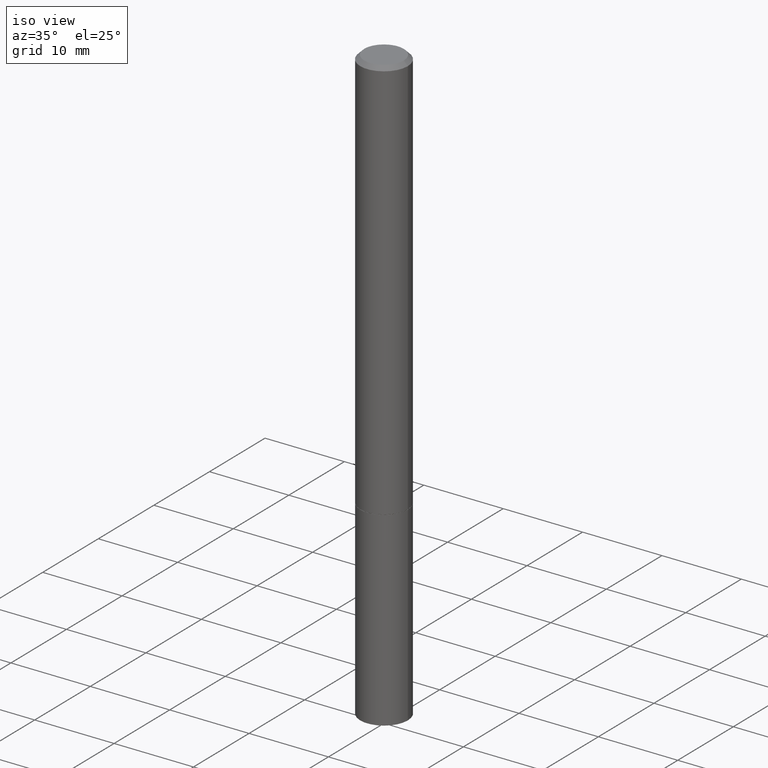
[diagram: clean part render]
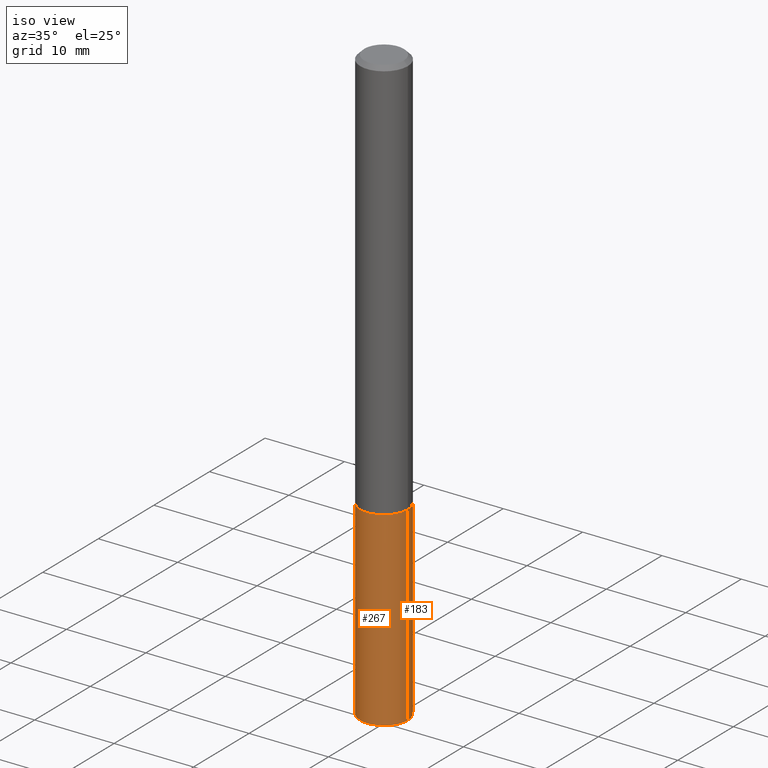
[diagram: same view with one multi-face feature highlighted, each face labeled with its STEP entity id]
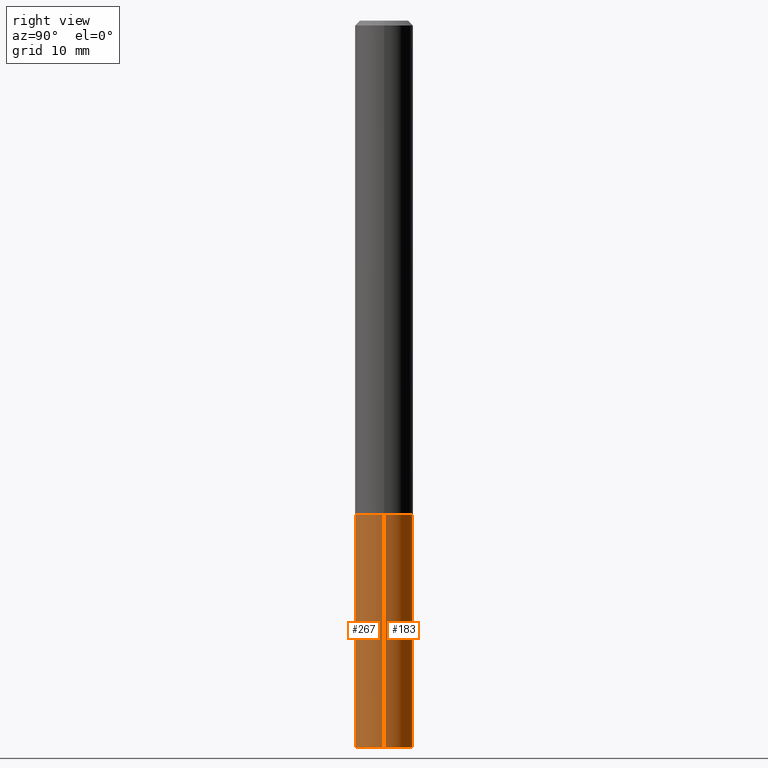
[diagram: same view with one multi-face feature highlighted, each face labeled with its STEP entity id]
A machine part, iso view. The highlighted faces form ONE feature: a constant-radius fillet chain: 2 tangent blend faces with common blend radius 2.9997 mm. The faces share edges in the B-rep.
A second angle (right view) of the same feature is appended — it is thin or edge-on in the first view.
Their STEP definitions:
[1] entity #183 (Cylinder):
#6 = CIRCLE ( 'NONE', #207, 0.1180999999999999966 ) ;
#8 = DIRECTION ( 'NONE',  ( -2.445468806185136597E-29, 3.491481338843145583E-15, 1.000000000000000000 ) ) ;
#9 = DIRECTION ( 'NONE',  ( 1.000000000000000000, -6.982962677686266711E-15, 4.876176775795936353E-29 ) ) ;
#34 = LINE ( 'NONE', #147, #113 ) ;
#44 = CARTESIAN_POINT ( 'NONE',  ( -0.1180999999999999966, 8.391509709326782957E-16, -5.809262341591043784E-30 ) ) ;
#50 = EDGE_LOOP ( 'NONE', ( #60, #89, #344, #168 ) ) ;
#53 = AXIS2_PLACEMENT_3D ( 'NONE', #352, #103, #9 ) ;
#60 = ORIENTED_EDGE ( 'NONE', *, *, #86, .T. ) ;
#62 = EDGE_CURVE ( 'NONE', #345, #90, #34, .T. ) ;
#65 = CARTESIAN_POINT ( 'NONE',  ( -0.1180999999999999966, -7.820944767866917317E-15, -2.952799999999999869 ) ) ;
#71 = CARTESIAN_POINT ( 'NONE',  ( 0.1180999999999999966, -1.113433398957078679E-14, -2.952799999999999869 ) ) ;
#79 = FACE_OUTER_BOUND ( 'NONE', #50, .T. ) ;
#86 = EDGE_CURVE ( 'NONE', #345, #112, #317, .T. ) ;
#88 = EDGE_CURVE ( 'NONE', #90, #176, #6, .T. ) ;
#89 = ORIENTED_EDGE ( 'NONE', *, *, #221, .T. ) ;
#90 = VERTEX_POINT ( 'NONE', #251 ) ;
#103 = DIRECTION ( 'NONE',  ( -2.445468806185136597E-29, 3.491481338843145583E-15, 1.000000000000000000 ) ) ;
#112 = VERTEX_POINT ( 'NONE', #65 ) ;
#113 = VECTOR ( 'NONE', #291, 39.37007874015748143 ) ;
#120 = DIRECTION ( 'NONE',  ( 1.000000000000000000, -6.982962677686273021E-15, 0.000000000000000000 ) ) ;
#141 = DIRECTION ( 'NONE',  ( 1.000000000000000000, -6.982962677686265133E-15, 0.000000000000000000 ) ) ;
#147 = CARTESIAN_POINT ( 'NONE',  ( 0.1180999999999999966, -8.246878922347480654E-16, 5.758764772215000440E-30 ) ) ;
#158 = DIRECTION ( 'NONE',  ( -2.445468806185136877E-29, 3.491481338843145188E-15, 1.000000000000000000 ) ) ;
#168 = ORIENTED_EDGE ( 'NONE', *, *, #62, .F. ) ;
#176 = VERTEX_POINT ( 'NONE', #266 ) ;
#183 = ADVANCED_FACE ( 'NONE', ( #79 ), #303, .T. ) ;
#207 = AXIS2_PLACEMENT_3D ( 'NONE', #337, #321, #141 ) ;
#221 = EDGE_CURVE ( 'NONE', #112, #176, #298, .T. ) ;
#247 = VECTOR ( 'NONE', #158, 39.37007874015748143 ) ;
#251 = CARTESIAN_POINT ( 'NONE',  ( 0.1180999999999999966, -7.835233272497899184E-15, -2.007899999999999796 ) ) ;
#260 = CARTESIAN_POINT ( 'NONE',  ( 7.220980290903470182E-29, -1.030964609733603853E-14, -2.952799999999999869 ) ) ;
#266 = CARTESIAN_POINT ( 'NONE',  ( -0.1180999999999999966, -7.820944767866917317E-15, -2.007899999999999796 ) ) ;
#291 = DIRECTION ( 'NONE',  ( -2.445468806185136877E-29, 3.491481338843145188E-15, 1.000000000000000000 ) ) ;
#298 = LINE ( 'NONE', #44, #247 ) ;
#303 = CYLINDRICAL_SURFACE ( 'NONE', #53, 0.1180999999999999966 ) ;
#317 = CIRCLE ( 'NONE', #327, 0.1180999999999999966 ) ;
#321 = DIRECTION ( 'NONE',  ( -2.445468806185136597E-29, 3.491481338843145583E-15, 1.000000000000000000 ) ) ;
#327 = AXIS2_PLACEMENT_3D ( 'NONE', #260, #8, #120 ) ;
#337 = CARTESIAN_POINT ( 'NONE',  ( 4.910256815939135309E-29, -7.010545380263150922E-15, -2.007899999999999796 ) ) ;
#344 = ORIENTED_EDGE ( 'NONE', *, *, #88, .F. ) ;
#345 = VERTEX_POINT ( 'NONE', #71 ) ;
#352 = CARTESIAN_POINT ( 'NONE',  ( 0.000000000000000000, 0.000000000000000000, 0.000000000000000000 ) ) ;
[2] entity #267 (Cylinder):
#26 = FACE_OUTER_BOUND ( 'NONE', #106, .T. ) ;
#29 = ORIENTED_EDGE ( 'NONE', *, *, #221, .F. ) ;
#33 = ORIENTED_EDGE ( 'NONE', *, *, #66, .T. ) ;
#34 = LINE ( 'NONE', #147, #113 ) ;
#36 = CARTESIAN_POINT ( 'NONE',  ( 7.220980290903470182E-29, -1.030964609733603853E-14, -2.952799999999999869 ) ) ;
#44 = CARTESIAN_POINT ( 'NONE',  ( -0.1180999999999999966, 8.391509709326782957E-16, -5.809262341591043784E-30 ) ) ;
#62 = EDGE_CURVE ( 'NONE', #345, #90, #34, .T. ) ;
#65 = CARTESIAN_POINT ( 'NONE',  ( -0.1180999999999999966, -7.820944767866917317E-15, -2.952799999999999869 ) ) ;
#66 = EDGE_CURVE ( 'NONE', #112, #345, #310, .T. ) ;
#71 = CARTESIAN_POINT ( 'NONE',  ( 0.1180999999999999966, -1.113433398957078679E-14, -2.952799999999999869 ) ) ;
#77 = AXIS2_PLACEMENT_3D ( 'NONE', #246, #252, #115 ) ;
#90 = VERTEX_POINT ( 'NONE', #251 ) ;
#106 = EDGE_LOOP ( 'NONE', ( #29, #33, #162, #146 ) ) ;
#111 = DIRECTION ( 'NONE',  ( -2.445468806185136597E-29, 3.491481338843145583E-15, 1.000000000000000000 ) ) ;
#112 = VERTEX_POINT ( 'NONE', #65 ) ;
#113 = VECTOR ( 'NONE', #291, 39.37007874015748143 ) ;
#115 = DIRECTION ( 'NONE',  ( 1.000000000000000000, -6.982962677686265133E-15, 0.000000000000000000 ) ) ;
#139 = CARTESIAN_POINT ( 'NONE',  ( 0.000000000000000000, 0.000000000000000000, 0.000000000000000000 ) ) ;
#146 = ORIENTED_EDGE ( 'NONE', *, *, #258, .F. ) ;
#147 = CARTESIAN_POINT ( 'NONE',  ( 0.1180999999999999966, -8.246878922347480654E-16, 5.758764772215000440E-30 ) ) ;
#148 = DIRECTION ( 'NONE',  ( 1.000000000000000000, -6.982962677686273021E-15, 0.000000000000000000 ) ) ;
#158 = DIRECTION ( 'NONE',  ( -2.445468806185136877E-29, 3.491481338843145188E-15, 1.000000000000000000 ) ) ;
#162 = ORIENTED_EDGE ( 'NONE', *, *, #62, .T. ) ;
#176 = VERTEX_POINT ( 'NONE', #266 ) ;
#208 = AXIS2_PLACEMENT_3D ( 'NONE', #139, #111, #361 ) ;
#221 = EDGE_CURVE ( 'NONE', #112, #176, #298, .T. ) ;
#246 = CARTESIAN_POINT ( 'NONE',  ( 4.910256815939135309E-29, -7.010545380263150922E-15, -2.007899999999999796 ) ) ;
#247 = VECTOR ( 'NONE', #158, 39.37007874015748143 ) ;
#251 = CARTESIAN_POINT ( 'NONE',  ( 0.1180999999999999966, -7.835233272497899184E-15, -2.007899999999999796 ) ) ;
#252 = DIRECTION ( 'NONE',  ( -2.445468806185136597E-29, 3.491481338843145583E-15, 1.000000000000000000 ) ) ;
#256 = DIRECTION ( 'NONE',  ( -2.445468806185136597E-29, 3.491481338843145583E-15, 1.000000000000000000 ) ) ;
#258 = EDGE_CURVE ( 'NONE', #176, #90, #261, .T. ) ;
#261 = CIRCLE ( 'NONE', #77, 0.1180999999999999966 ) ;
#266 = CARTESIAN_POINT ( 'NONE',  ( -0.1180999999999999966, -7.820944767866917317E-15, -2.007899999999999796 ) ) ;
#267 = ADVANCED_FACE ( 'NONE', ( #26 ), #336, .T. ) ;
#291 = DIRECTION ( 'NONE',  ( -2.445468806185136877E-29, 3.491481338843145188E-15, 1.000000000000000000 ) ) ;
#298 = LINE ( 'NONE', #44, #247 ) ;
#310 = CIRCLE ( 'NONE', #322, 0.1180999999999999966 ) ;
#322 = AXIS2_PLACEMENT_3D ( 'NONE', #36, #256, #148 ) ;
#336 = CYLINDRICAL_SURFACE ( 'NONE', #208, 0.1180999999999999966 ) ;
#345 = VERTEX_POINT ( 'NONE', #71 ) ;
#361 = DIRECTION ( 'NONE',  ( 1.000000000000000000, -6.982962677686266711E-15, 4.876176775795936353E-29 ) ) ;